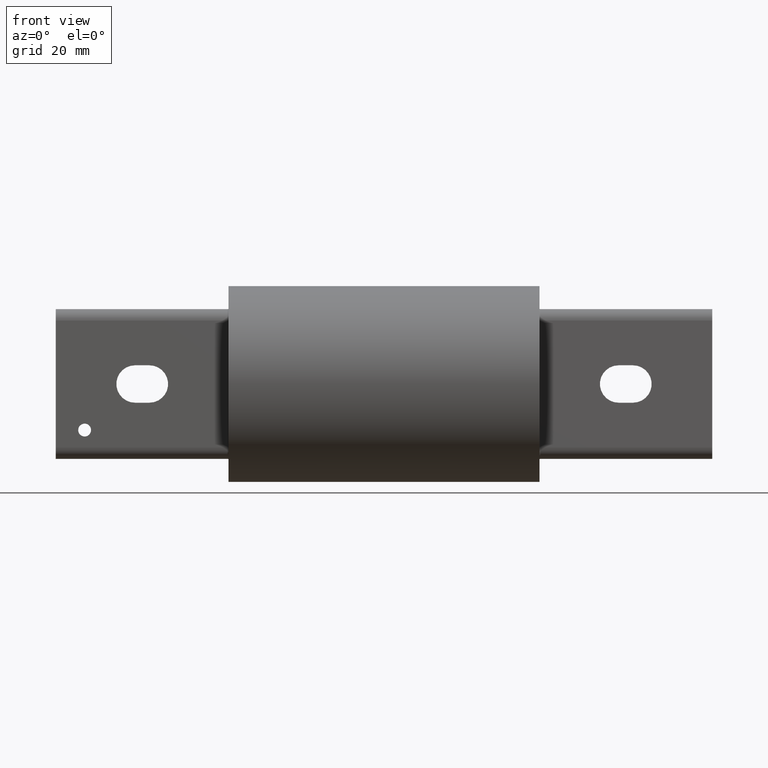
[diagram: clean part render]
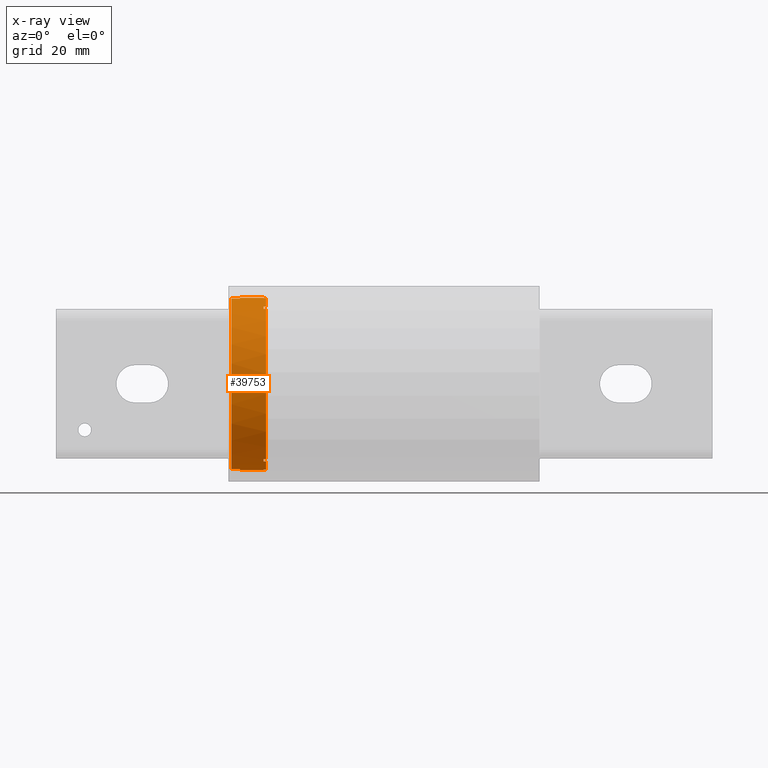
[diagram: x-ray — body ghosted, one internal face saturated and labeled with its STEP entity id]
A machine part, front view, then the same camera in x-ray: the body is ghosted and one INTERNAL B-rep face — a face not visible from any outside direction — is saturated and labeled: STEP entity #39753.
In plain terms, the highlighted cylindrical surface (bore or boss wall) has radius 23.7744 mm, axis along (1, 0, 0).
Its self-contained STEP definition (entity closure, byte-faithful):
#3 = EDGE_CURVE ( 'NONE', #36871, #22538, #7572, .T. ) ;
#72 = DIRECTION ( 'NONE',  ( -1.000000000000000000, -0.0000000000000000000, -0.0000000000000000000 ) ) ;
#429 = CIRCLE ( 'NONE', #34211, 0.9360000000000000500 ) ;
#628 = CARTESIAN_POINT ( 'NONE',  ( -1.307499999999999900, -1.488310777201891700E-016, 1.230886798966960700E-032 ) ) ;
#945 = DIRECTION ( 'NONE',  ( -1.000000000000000000, -0.0000000000000000000, -0.0000000000000000000 ) ) ;
#952 = VERTEX_POINT ( 'NONE', #5720 ) ;
#1062 = EDGE_CURVE ( 'NONE', #31111, #23963, #40950, .T. ) ;
#1123 = AXIS2_PLACEMENT_3D ( 'NONE', #41723, #21689, #1634 ) ;
#1203 = CARTESIAN_POINT ( 'NONE',  ( -1.307499999999999900, -0.08600000000000016000, -0.9320407716403826800 ) ) ;
#1634 = DIRECTION ( 'NONE',  ( 0.0000000000000000000, 5.329070518200751400E-015, 1.000000000000000000 ) ) ;
#1729 = CARTESIAN_POINT ( 'NONE',  ( -1.307499999999999900, -1.488310777201891700E-016, 1.230886798966960700E-032 ) ) ;
#1834 = DIRECTION ( 'NONE',  ( 0.0000000000000000000, 0.0000000000000000000, -1.000000000000000000 ) ) ;
#1902 = EDGE_CURVE ( 'NONE', #40966, #5715, #42497, .T. ) ;
#2158 = CIRCLE ( 'NONE', #13320, 0.9360000000000000500 ) ;
#2448 = ORIENTED_EDGE ( 'NONE', *, *, #41980, .T. ) ;
#2517 = EDGE_CURVE ( 'NONE', #21811, #19592, #11062, .T. ) ;
#2587 = DIRECTION ( 'NONE',  ( 1.000000000000000000, 0.0000000000000000000, 0.0000000000000000000 ) ) ;
#2724 = DIRECTION ( 'NONE',  ( 0.0000000000000000000, 1.687538997430237900E-014, -1.000000000000000000 ) ) ;
#2902 = VECTOR ( 'NONE', #19708, 39.37007874015748100 ) ;
#2952 = DIRECTION ( 'NONE',  ( -1.000000000000000000, 0.0000000000000000000, 0.0000000000000000000 ) ) ;
#3007 = EDGE_CURVE ( 'NONE', #8845, #15451, #429, .T. ) ;
#3032 = CARTESIAN_POINT ( 'NONE',  ( -1.279499999999998700, -1.488310777201891700E-016, 1.230886798966960700E-032 ) ) ;
#3161 = VECTOR ( 'NONE', #42672, 39.37007874015748100 ) ;
#3272 = CIRCLE ( 'NONE', #31532, 0.9360000000000000500 ) ;
#3439 = VECTOR ( 'NONE', #28714, 39.37007874015748100 ) ;
#3490 = VERTEX_POINT ( 'NONE', #1203 ) ;
#3576 = AXIS2_PLACEMENT_3D ( 'NONE', #38819, #28717, #15113 ) ;
#3682 = CARTESIAN_POINT ( 'NONE',  ( -1.279499999999998700, -1.488310777201891700E-016, 1.230886798966960700E-032 ) ) ;
#3864 = CARTESIAN_POINT ( 'NONE',  ( -1.279499999999998700, -1.488310777201891700E-016, 1.230886798966960700E-032 ) ) ;
#3963 = LINE ( 'NONE', #26312, #2902 ) ;
#4011 = DIRECTION ( 'NONE',  ( 0.0000000000000000000, 0.0000000000000000000, -1.000000000000000000 ) ) ;
#4061 = VERTEX_POINT ( 'NONE', #26986 ) ;
#4064 = DIRECTION ( 'NONE',  ( 1.000000000000000000, -0.0000000000000000000, -0.0000000000000000000 ) ) ;
#4115 = DIRECTION ( 'NONE',  ( -1.000000000000000000, -0.0000000000000000000, -0.0000000000000000000 ) ) ;
#4265 = VECTOR ( 'NONE', #32842, 39.37007874015748100 ) ;
#4342 = DIRECTION ( 'NONE',  ( -1.000000000000000000, -0.0000000000000000000, -0.0000000000000000000 ) ) ;
#4403 = ORIENTED_EDGE ( 'NONE', *, *, #42863, .F. ) ;
#4425 = EDGE_CURVE ( 'NONE', #36871, #18808, #42555, .T. ) ;
#4557 = ORIENTED_EDGE ( 'NONE', *, *, #22201, .F. ) ;
#4583 = CARTESIAN_POINT ( 'NONE',  ( -1.657499999999999100, -0.1280000000000001700, 0.9272065573538617000 ) ) ;
#4693 = EDGE_CURVE ( 'NONE', #32577, #17165, #21250, .T. ) ;
#5064 = AXIS2_PLACEMENT_3D ( 'NONE', #27722, #7677, #31100 ) ;
#5108 = DIRECTION ( 'NONE',  ( 0.0000000000000000000, 0.0000000000000000000, -1.000000000000000000 ) ) ;
#5205 = ORIENTED_EDGE ( 'NONE', *, *, #4693, .T. ) ;
#5362 = EDGE_CURVE ( 'NONE', #27086, #40966, #21713, .T. ) ;
#5500 = EDGE_CURVE ( 'NONE', #29508, #25400, #7596, .T. ) ;
#5590 = ORIENTED_EDGE ( 'NONE', *, *, #36359, .F. ) ;
#5604 = EDGE_CURVE ( 'NONE', #32215, #21811, #11770, .T. ) ;
#5715 = VERTEX_POINT ( 'NONE', #39133 ) ;
#5720 = CARTESIAN_POINT ( 'NONE',  ( -1.307499999999999900, -0.4610000000000001300, -0.8146011293878742100 ) ) ;
#5753 = ORIENTED_EDGE ( 'NONE', *, *, #1902, .T. ) ;
#5813 = CARTESIAN_POINT ( 'NONE',  ( -1.687500000000000000, -1.488310777201891700E-016, 1.230886798966960700E-032 ) ) ;
#6130 = CARTESIAN_POINT ( 'NONE',  ( -1.687500000000000000, -0.1280000000000001700, 0.9272065573538615900 ) ) ;
#6234 = CARTESIAN_POINT ( 'NONE',  ( -1.279499999999998700, 0.4609999999999998500, 0.8146011293878742100 ) ) ;
#6335 = CARTESIAN_POINT ( 'NONE',  ( -1.307499999999999900, 0.4609999999999998500, -0.8146011293878742100 ) ) ;
#6438 = DIRECTION ( 'NONE',  ( 0.0000000000000000000, 8.881784197001252300E-016, -1.000000000000000000 ) ) ;
#6503 = ORIENTED_EDGE ( 'NONE', *, *, #37952, .T. ) ;
#6658 = DIRECTION ( 'NONE',  ( -1.000000000000000000, -0.0000000000000000000, -0.0000000000000000000 ) ) ;
#6867 = DIRECTION ( 'NONE',  ( -1.000000000000000000, 0.0000000000000000000, 0.0000000000000000000 ) ) ;
#6918 = VERTEX_POINT ( 'NONE', #14919 ) ;
#7089 = LINE ( 'NONE', #25961, #24856 ) ;
#7186 = CARTESIAN_POINT ( 'NONE',  ( -1.687500000000000000, -0.08600000000000016000, 0.9320407716403825700 ) ) ;
#7208 = EDGE_LOOP ( 'NONE', ( #13712 ) ) ;
#7274 = DIRECTION ( 'NONE',  ( 0.0000000000000000000, -3.552713678800500900E-015, -1.000000000000000000 ) ) ;
#7413 = AXIS2_PLACEMENT_3D ( 'NONE', #3032, #26462, #6438 ) ;
#7538 = EDGE_CURVE ( 'NONE', #20592, #19362, #24415, .T. ) ;
#7572 = CIRCLE ( 'NONE', #39906, 0.9360000000000000500 ) ;
#7596 = LINE ( 'NONE', #17495, #42112 ) ;
#7677 = DIRECTION ( 'NONE',  ( -1.000000000000000000, 0.0000000000000000000, 0.0000000000000000000 ) ) ;
#7814 = EDGE_CURVE ( 'NONE', #14826, #14826, #9866, .T. ) ;
#7951 = DIRECTION ( 'NONE',  ( 1.000000000000000000, -0.0000000000000000000, -0.0000000000000000000 ) ) ;
#8071 = CARTESIAN_POINT ( 'NONE',  ( -1.687500000000000000, 0.4139999999999998700, -0.8394641147779933200 ) ) ;
#8174 = CIRCLE ( 'NONE', #5064, 0.9360000000000000500 ) ;
#8211 = FACE_OUTER_BOUND ( 'NONE', #35375, .T. ) ;
#8547 = CARTESIAN_POINT ( 'NONE',  ( -3.558464724413584500, 0.03899999999999985400, -0.9351871470459803800 ) ) ;
#8558 = CIRCLE ( 'NONE', #23314, 0.9360000000000000500 ) ;
#8570 = CARTESIAN_POINT ( 'NONE',  ( -1.307499999999999900, -1.488310777201891700E-016, 1.230886798966960700E-032 ) ) ;
#8704 = CARTESIAN_POINT ( 'NONE',  ( -1.279499999999998500, 0.08599999999999985400, 0.9320407716403826800 ) ) ;
#8845 = VERTEX_POINT ( 'NONE', #4583 ) ;
#9426 = CARTESIAN_POINT ( 'NONE',  ( -1.279499999999998700, 0.08599999999999985400, -0.9320407716403826800 ) ) ;
#9466 = CIRCLE ( 'NONE', #26598, 0.9360000000000000500 ) ;
#9524 = ORIENTED_EDGE ( 'NONE', *, *, #39891, .T. ) ;
#9866 = B_SPLINE_CURVE_WITH_KNOTS ( 'NONE', 3,
 ( #39568, #39622, #39563, #39528, #39480, #39422, #39393, #39284, #38849, #38844, #38815, #38799, #38561, #38480, #38433, #38425, #38283, #38276, #38138, #38090, #37846, #37792, #37748, #37694, #37548, #37491, #37453, #37392, #37325, #37239, #37193, #37149, #37103, #37094, #37048, #37021, #36896, #36758, #36481, #36391, #36249, #36193 ),
 .UNSPECIFIED., .T., .F.,
 ( 4, 2, 2, 2, 2, 2, 2, 2, 2, 2, 2, 2, 2, 2, 2, 2, 2, 2, 2, 2, 4 ),
 ( 0.0000000000000000000, 0.0005038046531170146300, 0.0007557069796755211300, 0.001007609306234027500, 0.001511413959351040300, 0.002015218612468053300, 0.002267120939026554900, 0.002519023265585057000, 0.003022827918702061100, 0.003526632571819065200, 0.003778534898377557700, 0.004030437224936051100, 0.004534241878053016200, 0.005038046531169982100, 0.005541851184286947200, 0.006045655837403913200, 0.006549460490520877400, 0.006801362817079361700, 0.007053265143637844200, 0.007557069796754806700, 0.008060874449871769200 ),
 .UNSPECIFIED. ) ;
#10021 = VECTOR ( 'NONE', #25496, 39.37007874015748100 ) ;
#10031 = LINE ( 'NONE', #38727, #27817 ) ;
#10372 = CARTESIAN_POINT ( 'NONE',  ( -1.307499999999999900, -0.4610000000000001300, 0.8146011293878742100 ) ) ;
#10428 = EDGE_CURVE ( 'NONE', #952, #33117, #10469, .T. ) ;
#10469 = LINE ( 'NONE', #19705, #36117 ) ;
#10857 = CARTESIAN_POINT ( 'NONE',  ( -1.307499999999999900, 0.08599999999999985400, -0.9320407716403826800 ) ) ;
#11018 = CIRCLE ( 'NONE', #12948, 0.9360000000000000500 ) ;
#11036 = VECTOR ( 'NONE', #4064, 39.37007874015748100 ) ;
#11062 = LINE ( 'NONE', #8547, #10021 ) ;
#11084 = ORIENTED_EDGE ( 'NONE', *, *, #25969, .F. ) ;
#11313 = CARTESIAN_POINT ( 'NONE',  ( -1.279499999999998700, -1.488310777201891700E-016, 1.230886798966960700E-032 ) ) ;
#11416 = DIRECTION ( 'NONE',  ( 1.000000000000000000, -0.0000000000000000000, -0.0000000000000000000 ) ) ;
#11504 = ORIENTED_EDGE ( 'NONE', *, *, #10428, .T. ) ;
#11770 = CIRCLE ( 'NONE', #27908, 0.9360000000000000500 ) ;
#11878 = ORIENTED_EDGE ( 'NONE', *, *, #29658, .F. ) ;
#11944 = VERTEX_POINT ( 'NONE', #35445 ) ;
#12439 = CARTESIAN_POINT ( 'NONE',  ( -1.279499999999998700, -0.4610000000000001300, 0.8146011293878741000 ) ) ;
#12541 = ORIENTED_EDGE ( 'NONE', *, *, #12584, .T. ) ;
#12571 = VECTOR ( 'NONE', #13921, 39.37007874015748100 ) ;
#12584 = EDGE_CURVE ( 'NONE', #25400, #37494, #11018, .T. ) ;
#12746 = VERTEX_POINT ( 'NONE', #35390 ) ;
#12856 = DIRECTION ( 'NONE',  ( -1.000000000000000000, 0.0000000000000000000, 0.0000000000000000000 ) ) ;
#12948 = AXIS2_PLACEMENT_3D ( 'NONE', #3682, #2952, #2724 ) ;
#12965 = CARTESIAN_POINT ( 'NONE',  ( -1.279499999999998700, -1.488310777201891700E-016, 1.230886798966960700E-032 ) ) ;
#13037 = VECTOR ( 'NONE', #27865, 39.37007874015748100 ) ;
#13111 = DIRECTION ( 'NONE',  ( 1.000000000000000000, -0.0000000000000000000, -0.0000000000000000000 ) ) ;
#13320 = AXIS2_PLACEMENT_3D ( 'NONE', #33123, #13111, #36469 ) ;
#13546 = CIRCLE ( 'NONE', #29576, 0.9360000000000000500 ) ;
#13574 = AXIS2_PLACEMENT_3D ( 'NONE', #1729, #25164, #5108 ) ;
#13712 = ORIENTED_EDGE ( 'NONE', *, *, #7814, .F. ) ;
#13844 = DIRECTION ( 'NONE',  ( 0.0000000000000000000, 2.131628207280300600E-014, -1.000000000000000000 ) ) ;
#13921 = DIRECTION ( 'NONE',  ( -1.000000000000000000, -0.0000000000000000000, -0.0000000000000000000 ) ) ;
#14518 = EDGE_CURVE ( 'NONE', #5715, #34801, #7089, .T. ) ;
#14682 = DIRECTION ( 'NONE',  ( 0.0000000000000000000, 0.0000000000000000000, -1.000000000000000000 ) ) ;
#14826 = VERTEX_POINT ( 'NONE', #22187 ) ;
#14919 = CARTESIAN_POINT ( 'NONE',  ( -1.307499999999999900, 0.03899999999999985400, 0.9351871470459806000 ) ) ;
#15053 = EDGE_CURVE ( 'NONE', #34801, #32577, #8558, .T. ) ;
#15113 = DIRECTION ( 'NONE',  ( 0.0000000000000000000, -7.460698725481050700E-014, -1.000000000000000000 ) ) ;
#15451 = VERTEX_POINT ( 'NONE', #19205 ) ;
#15653 = ORIENTED_EDGE ( 'NONE', *, *, #20571, .T. ) ;
#15826 = ORIENTED_EDGE ( 'NONE', *, *, #41411, .T. ) ;
#16071 = VERTEX_POINT ( 'NONE', #18869 ) ;
#16088 = LINE ( 'NONE', #40527, #32831 ) ;
#16294 = EDGE_CURVE ( 'NONE', #23769, #32059, #38193, .T. ) ;
#16306 = DIRECTION ( 'NONE',  ( 0.0000000000000000000, -2.664535259100375700E-015, -1.000000000000000000 ) ) ;
#16450 = VERTEX_POINT ( 'NONE', #31467 ) ;
#16601 = DIRECTION ( 'NONE',  ( 1.000000000000000000, 0.0000000000000000000, 0.0000000000000000000 ) ) ;
#16688 = CARTESIAN_POINT ( 'NONE',  ( -1.279499999999998700, -0.08600000000000016000, 0.9320407716403825700 ) ) ;
#17165 = VERTEX_POINT ( 'NONE', #38705 ) ;
#17298 = VERTEX_POINT ( 'NONE', #9426 ) ;
#17480 = CARTESIAN_POINT ( 'NONE',  ( -1.657499999999999500, 0.1279999999999998600, 0.9272065573538617000 ) ) ;
#17495 = CARTESIAN_POINT ( 'NONE',  ( -3.558464724413584500, -0.03900000000000014600, 0.9351871470459806000 ) ) ;
#17571 = ORIENTED_EDGE ( 'NONE', *, *, #24451, .T. ) ;
#17675 = EDGE_LOOP ( 'NONE', ( #2448, #40640, #24591, #11504, #9524, #31990, #5753, #36210, #22002, #5205, #30791, #29267, #12541, #11878, #41715, #37649, #40648, #4557, #40785, #24094, #15826, #22078, #38202, #18380, #38492, #18184, #28114, #41142, #39571, #32296, #17571, #6503 ) ) ;
#18184 = ORIENTED_EDGE ( 'NONE', *, *, #37456, .F. ) ;
#18380 = ORIENTED_EDGE ( 'NONE', *, *, #20923, .F. ) ;
#18509 = DIRECTION ( 'NONE',  ( -1.000000000000000000, -0.0000000000000000000, -0.0000000000000000000 ) ) ;
#18692 = CARTESIAN_POINT ( 'NONE',  ( -1.307499999999999900, 0.4609999999999998500, 0.8146011293878742100 ) ) ;
#18808 = VERTEX_POINT ( 'NONE', #17480 ) ;
#18869 = CARTESIAN_POINT ( 'NONE',  ( -1.279499999999998700, -0.08600000000000016000, -0.9320407716403825700 ) ) ;
#19205 = CARTESIAN_POINT ( 'NONE',  ( -1.657499999999999500, -0.1280000000000001700, -0.9272065573538617000 ) ) ;
#19362 = VERTEX_POINT ( 'NONE', #37933 ) ;
#19459 = CARTESIAN_POINT ( 'NONE',  ( -1.307499999999999900, -0.4140000000000001500, -0.8394641147779934300 ) ) ;
#19592 = VERTEX_POINT ( 'NONE', #36133 ) ;
#19705 = CARTESIAN_POINT ( 'NONE',  ( -1.687500000000000000, -0.4610000000000001300, -0.8146011293878741000 ) ) ;
#19708 = DIRECTION ( 'NONE',  ( 1.000000000000000000, 0.0000000000000000000, 0.0000000000000000000 ) ) ;
#19738 = DIRECTION ( 'NONE',  ( -1.000000000000000000, -0.0000000000000000000, -0.0000000000000000000 ) ) ;
#19890 = CARTESIAN_POINT ( 'NONE',  ( -1.307499999999999900, 0.08599999999999985400, 0.9320407716403826800 ) ) ;
#20089 = EDGE_CURVE ( 'NONE', #6918, #32059, #21113, .T. ) ;
#20130 = CARTESIAN_POINT ( 'NONE',  ( -1.307499999999999900, -1.488310777201891700E-016, 1.230886798966960700E-032 ) ) ;
#20206 = ORIENTED_EDGE ( 'NONE', *, *, #23732, .T. ) ;
#20240 = AXIS2_PLACEMENT_3D ( 'NONE', #628, #24051, #4011 ) ;
#20256 = DIRECTION ( 'NONE',  ( 1.000000000000000000, 0.0000000000000000000, 0.0000000000000000000 ) ) ;
#20264 = CARTESIAN_POINT ( 'NONE',  ( -1.279499999999998700, -0.4610000000000001300, -0.8146011293878741000 ) ) ;
#20430 = VERTEX_POINT ( 'NONE', #25502 ) ;
#20571 = EDGE_CURVE ( 'NONE', #37469, #18808, #2158, .T. ) ;
#20592 = VERTEX_POINT ( 'NONE', #6335 ) ;
#20757 = CARTESIAN_POINT ( 'NONE',  ( -1.687500000000000000, 0.08599999999999985400, 0.9320407716403825700 ) ) ;
#20923 = EDGE_CURVE ( 'NONE', #16450, #19362, #27275, .T. ) ;
#21008 = CARTESIAN_POINT ( 'NONE',  ( -1.307499999999999900, -1.488310777201891700E-016, 1.230886798966960700E-032 ) ) ;
#21023 = LINE ( 'NONE', #26068, #4265 ) ;
#21113 = CIRCLE ( 'NONE', #20240, 0.9360000000000000500 ) ;
#21250 = LINE ( 'NONE', #7186, #3439 ) ;
#21266 = VECTOR ( 'NONE', #11416, 39.37007874015748100 ) ;
#21689 = DIRECTION ( 'NONE',  ( 1.000000000000000000, -0.0000000000000000000, -0.0000000000000000000 ) ) ;
#21713 = LINE ( 'NONE', #28174, #29590 ) ;
#21802 = AXIS2_PLACEMENT_3D ( 'NONE', #41920, #21889, #1834 ) ;
#21811 = VERTEX_POINT ( 'NONE', #27291 ) ;
#21889 = DIRECTION ( 'NONE',  ( -1.000000000000000000, -0.0000000000000000000, -0.0000000000000000000 ) ) ;
#22002 = ORIENTED_EDGE ( 'NONE', *, *, #15053, .T. ) ;
#22078 = ORIENTED_EDGE ( 'NONE', *, *, #24766, .F. ) ;
#22187 = CARTESIAN_POINT ( 'NONE',  ( -1.444499999999999900, 0.8440580171670940500, 0.4045516823051822400 ) ) ;
#22201 = EDGE_CURVE ( 'NONE', #24193, #36420, #35880, .T. ) ;
#22236 = CARTESIAN_POINT ( 'NONE',  ( -1.562500000000000000, -0.1280000000000001700, 0.9272065573538617000 ) ) ;
#22538 = VERTEX_POINT ( 'NONE', #22236 ) ;
#22740 = AXIS2_PLACEMENT_3D ( 'NONE', #12965, #36323, #16306 ) ;
#22925 = CARTESIAN_POINT ( 'NONE',  ( -1.279499999999998300, 0.4139999999999998700, 0.8394641147779962100 ) ) ;
#23314 = AXIS2_PLACEMENT_3D ( 'NONE', #3864, #27318, #7274 ) ;
#23320 = ORIENTED_EDGE ( 'NONE', *, *, #4425, .F. ) ;
#23428 = DIRECTION ( 'NONE',  ( 1.000000000000000000, -0.0000000000000000000, -0.0000000000000000000 ) ) ;
#23485 = DIRECTION ( 'NONE',  ( 0.0000000000000000000, 0.0000000000000000000, -1.000000000000000000 ) ) ;
#23732 = EDGE_CURVE ( 'NONE', #12746, #20430, #27201, .T. ) ;
#23769 = VERTEX_POINT ( 'NONE', #8704 ) ;
#23829 = DIRECTION ( 'NONE',  ( 1.000000000000000000, 0.0000000000000000000, 0.0000000000000000000 ) ) ;
#23963 = VERTEX_POINT ( 'NONE', #19459 ) ;
#23977 = EDGE_CURVE ( 'NONE', #16450, #17298, #38623, .T. ) ;
#24051 = DIRECTION ( 'NONE',  ( -1.000000000000000000, -0.0000000000000000000, -0.0000000000000000000 ) ) ;
#24094 = ORIENTED_EDGE ( 'NONE', *, *, #38763, .F. ) ;
#24100 = CARTESIAN_POINT ( 'NONE',  ( -3.558464724413584500, 0.03899999999999985400, 0.9351871470459806000 ) ) ;
#24193 = VERTEX_POINT ( 'NONE', #39969 ) ;
#24233 = CIRCLE ( 'NONE', #21802, 0.9360000000000000500 ) ;
#24376 = DIRECTION ( 'NONE',  ( 0.0000000000000000000, 0.0000000000000000000, -1.000000000000000000 ) ) ;
#24415 = CIRCLE ( 'NONE', #3576, 0.9360000000000000500 ) ;
#24451 = EDGE_CURVE ( 'NONE', #11944, #3490, #27082, .T. ) ;
#24591 = ORIENTED_EDGE ( 'NONE', *, *, #43418, .T. ) ;
#24757 = VECTOR ( 'NONE', #6658, 39.37007874015748100 ) ;
#24766 = EDGE_CURVE ( 'NONE', #20592, #4061, #3963, .T. ) ;
#24856 = VECTOR ( 'NONE', #42339, 39.37007874015748100 ) ;
#25164 = DIRECTION ( 'NONE',  ( -1.000000000000000000, -0.0000000000000000000, -0.0000000000000000000 ) ) ;
#25300 = CARTESIAN_POINT ( 'NONE',  ( -1.307499999999999900, -1.488310777201891700E-016, 1.230886798966960700E-032 ) ) ;
#25400 = VERTEX_POINT ( 'NONE', #39314 ) ;
#25496 = DIRECTION ( 'NONE',  ( 1.000000000000000000, -0.0000000000000000000, -0.0000000000000000000 ) ) ;
#25502 = CARTESIAN_POINT ( 'NONE',  ( -1.562500000000000000, 0.1279999999999998600, -0.9272065573538617000 ) ) ;
#25961 = CARTESIAN_POINT ( 'NONE',  ( -1.687500000000000000, -0.4140000000000001500, 0.8394641147779933200 ) ) ;
#25969 = EDGE_CURVE ( 'NONE', #12746, #15451, #21023, .T. ) ;
#26068 = CARTESIAN_POINT ( 'NONE',  ( -1.687500000000000000, -0.1280000000000001700, -0.9272065573538615900 ) ) ;
#26171 = DIRECTION ( 'NONE',  ( -1.000000000000000000, -0.0000000000000000000, -0.0000000000000000000 ) ) ;
#26312 = CARTESIAN_POINT ( 'NONE',  ( -1.687500000000000000, 0.4609999999999998500, -0.8146011293878741000 ) ) ;
#26462 = DIRECTION ( 'NONE',  ( -1.000000000000000000, 0.0000000000000000000, 0.0000000000000000000 ) ) ;
#26584 = AXIS2_PLACEMENT_3D ( 'NONE', #11313, #34725, #14682 ) ;
#26598 = AXIS2_PLACEMENT_3D ( 'NONE', #20130, #72, #23485 ) ;
#26907 = CARTESIAN_POINT ( 'NONE',  ( -1.279499999999998700, -1.488310777201891700E-016, 1.230886798966960700E-032 ) ) ;
#26973 = VECTOR ( 'NONE', #16601, 39.37007874015748100 ) ;
#26979 = VECTOR ( 'NONE', #38231, 39.37007874015748100 ) ;
#26986 = CARTESIAN_POINT ( 'NONE',  ( -1.279499999999998700, 0.4609999999999998500, -0.8146011293878742100 ) ) ;
#27082 = CIRCLE ( 'NONE', #13574, 0.9360000000000000500 ) ;
#27086 = VERTEX_POINT ( 'NONE', #12439 ) ;
#27201 = CIRCLE ( 'NONE', #1123, 0.9360000000000000500 ) ;
#27275 = LINE ( 'NONE', #8071, #36169 ) ;
#27291 = CARTESIAN_POINT ( 'NONE',  ( -1.307499999999999900, 0.03899999999999985400, -0.9351871470459806000 ) ) ;
#27318 = DIRECTION ( 'NONE',  ( -1.000000000000000000, 0.0000000000000000000, 0.0000000000000000000 ) ) ;
#27722 = CARTESIAN_POINT ( 'NONE',  ( -1.279499999999998700, -1.488310777201891700E-016, 1.230886798966960700E-032 ) ) ;
#27817 = VECTOR ( 'NONE', #18509, 39.37007874015748100 ) ;
#27865 = DIRECTION ( 'NONE',  ( 1.000000000000000000, 0.0000000000000000000, 0.0000000000000000000 ) ) ;
#27881 = CIRCLE ( 'NONE', #7413, 0.9360000000000000500 ) ;
#27908 = AXIS2_PLACEMENT_3D ( 'NONE', #8570, #4115, #42610 ) ;
#27939 = CARTESIAN_POINT ( 'NONE',  ( -1.687500000000000000, -0.4140000000000001500, -0.8394641147779933200 ) ) ;
#28114 = ORIENTED_EDGE ( 'NONE', *, *, #5604, .T. ) ;
#28118 = DIRECTION ( 'NONE',  ( -1.000000000000000000, -0.0000000000000000000, -0.0000000000000000000 ) ) ;
#28136 = EDGE_CURVE ( 'NONE', #19592, #34191, #30214, .T. ) ;
#28140 = CARTESIAN_POINT ( 'NONE',  ( -1.657499999999999100, 0.1279999999999998600, -0.9272065573538617000 ) ) ;
#28174 = CARTESIAN_POINT ( 'NONE',  ( -1.687500000000000000, -0.4610000000000001300, 0.8146011293878741000 ) ) ;
#28446 = DIRECTION ( 'NONE',  ( 0.0000000000000000000, 0.0000000000000000000, 1.000000000000000000 ) ) ;
#28714 = DIRECTION ( 'NONE',  ( -1.000000000000000000, -0.0000000000000000000, -0.0000000000000000000 ) ) ;
#28717 = DIRECTION ( 'NONE',  ( -1.000000000000000000, -0.0000000000000000000, -0.0000000000000000000 ) ) ;
#29267 = ORIENTED_EDGE ( 'NONE', *, *, #5500, .T. ) ;
#29508 = VERTEX_POINT ( 'NONE', #36560 ) ;
#29576 = AXIS2_PLACEMENT_3D ( 'NONE', #32893, #12856, #36227 ) ;
#29590 = VECTOR ( 'NONE', #4342, 39.37007874015748100 ) ;
#29658 = EDGE_CURVE ( 'NONE', #6918, #37494, #36661, .T. ) ;
#29906 = CARTESIAN_POINT ( 'NONE',  ( -1.687500000000000000, 0.4139999999999998700, 0.8394641147779933200 ) ) ;
#30214 = CIRCLE ( 'NONE', #26584, 0.9360000000000000500 ) ;
#30298 = DIRECTION ( 'NONE',  ( 0.0000000000000000000, 0.0000000000000000000, -1.000000000000000000 ) ) ;
#30791 = ORIENTED_EDGE ( 'NONE', *, *, #41125, .T. ) ;
#30830 = EDGE_CURVE ( 'NONE', #11944, #34191, #33355, .T. ) ;
#31100 = DIRECTION ( 'NONE',  ( 0.0000000000000000000, 0.0000000000000000000, -1.000000000000000000 ) ) ;
#31111 = VERTEX_POINT ( 'NONE', #32020 ) ;
#31126 = CIRCLE ( 'NONE', #41402, 0.9360000000000000500 ) ;
#31272 = VERTEX_POINT ( 'NONE', #6234 ) ;
#31467 = CARTESIAN_POINT ( 'NONE',  ( -1.279499999999998500, 0.4139999999999998700, -0.8394641147779934300 ) ) ;
#31468 = AXIS2_PLACEMENT_3D ( 'NONE', #5813, #2587, #39485 ) ;
#31532 = AXIS2_PLACEMENT_3D ( 'NONE', #21008, #945, #24376 ) ;
#31721 = CARTESIAN_POINT ( 'NONE',  ( -1.562500000000000000, 0.1279999999999998600, 0.9272065573538617000 ) ) ;
#31990 = ORIENTED_EDGE ( 'NONE', *, *, #5362, .T. ) ;
#32020 = CARTESIAN_POINT ( 'NONE',  ( -1.279499999999998700, -0.4140000000000001500, -0.8394641147779933200 ) ) ;
#32059 = VERTEX_POINT ( 'NONE', #19890 ) ;
#32089 = VECTOR ( 'NONE', #19738, 39.37007874015748100 ) ;
#32215 = VERTEX_POINT ( 'NONE', #10857 ) ;
#32296 = ORIENTED_EDGE ( 'NONE', *, *, #30830, .F. ) ;
#32577 = VERTEX_POINT ( 'NONE', #16688 ) ;
#32831 = VECTOR ( 'NONE', #23829, 39.37007874015748100 ) ;
#32842 = DIRECTION ( 'NONE',  ( -1.000000000000000000, -0.0000000000000000000, -0.0000000000000000000 ) ) ;
#32893 = CARTESIAN_POINT ( 'NONE',  ( -1.279499999999998700, -1.488310777201891700E-016, 1.230886798966960700E-032 ) ) ;
#33117 = VERTEX_POINT ( 'NONE', #20264 ) ;
#33123 = CARTESIAN_POINT ( 'NONE',  ( -1.657499999999999100, -1.488310777201891700E-016, 1.230886798966960700E-032 ) ) ;
#33355 = LINE ( 'NONE', #34816, #21266 ) ;
#33876 = FACE_BOUND ( 'NONE', #7208, .T. ) ;
#34147 = AXIS2_PLACEMENT_3D ( 'NONE', #25300, #26171, #13844 ) ;
#34191 = VERTEX_POINT ( 'NONE', #40377 ) ;
#34211 = AXIS2_PLACEMENT_3D ( 'NONE', #37978, #37963, #38496 ) ;
#34602 = CARTESIAN_POINT ( 'NONE',  ( -1.687500000000000000, 0.1279999999999998600, 0.9272065573538615900 ) ) ;
#34725 = DIRECTION ( 'NONE',  ( -1.000000000000000000, 0.0000000000000000000, 0.0000000000000000000 ) ) ;
#34801 = VERTEX_POINT ( 'NONE', #36964 ) ;
#34816 = CARTESIAN_POINT ( 'NONE',  ( -3.558464724413584500, -0.03900000000000014600, -0.9351871470459803800 ) ) ;
#35375 = EDGE_LOOP ( 'NONE', ( #11084, #20206, #4403, #15653, #23320, #39156, #5590, #36024 ) ) ;
#35390 = CARTESIAN_POINT ( 'NONE',  ( -1.562500000000000000, -0.1280000000000001700, -0.9272065573538617000 ) ) ;
#35445 = CARTESIAN_POINT ( 'NONE',  ( -1.307499999999999900, -0.03900000000000014600, -0.9351871470459806000 ) ) ;
#35880 = LINE ( 'NONE', #29906, #26973 ) ;
#35883 = LINE ( 'NONE', #41387, #26979 ) ;
#36024 = ORIENTED_EDGE ( 'NONE', *, *, #3007, .T. ) ;
#36117 = VECTOR ( 'NONE', #20256, 39.37007874015748100 ) ;
#36133 = CARTESIAN_POINT ( 'NONE',  ( -1.279499999999998700, 0.03899999999999985400, -0.9351871470459803800 ) ) ;
#36169 = VECTOR ( 'NONE', #28118, 39.37007874015748100 ) ;
#36193 = CARTESIAN_POINT ( 'NONE',  ( -1.444500000000000300, 0.8440580171670941700, 0.4045516823051823500 ) ) ;
#36210 = ORIENTED_EDGE ( 'NONE', *, *, #14518, .T. ) ;
#36227 = DIRECTION ( 'NONE',  ( 0.0000000000000000000, 0.0000000000000000000, -1.000000000000000000 ) ) ;
#36249 = CARTESIAN_POINT ( 'NONE',  ( -1.451206898777022100, 0.8440580171670945000, 0.4045516823051825700 ) ) ;
#36323 = DIRECTION ( 'NONE',  ( -1.000000000000000000, 0.0000000000000000000, 0.0000000000000000000 ) ) ;
#36359 = EDGE_CURVE ( 'NONE', #8845, #22538, #37752, .T. ) ;
#36391 = CARTESIAN_POINT ( 'NONE',  ( -1.457869738742850800, 0.8446439808444999900, 0.4033348443216715500 ) ) ;
#36420 = VERTEX_POINT ( 'NONE', #22925 ) ;
#36469 = DIRECTION ( 'NONE',  ( 0.0000000000000000000, 0.0000000000000000000, -1.000000000000000000 ) ) ;
#36476 = EDGE_CURVE ( 'NONE', #24193, #39610, #9466, .T. ) ;
#36481 = CARTESIAN_POINT ( 'NONE',  ( -1.470078862936384100, 0.8468204672433205000, 0.3987449652078820500 ) ) ;
#36560 = CARTESIAN_POINT ( 'NONE',  ( -1.307499999999999900, -0.03899999999999566300, 0.9351871470459806000 ) ) ;
#36661 = LINE ( 'NONE', #24100, #11036 ) ;
#36758 = CARTESIAN_POINT ( 'NONE',  ( -1.475734190780352100, 0.8484347060466934700, 0.3953182947606107600 ) ) ;
#36871 = VERTEX_POINT ( 'NONE', #31721 ) ;
#36896 = CARTESIAN_POINT ( 'NONE',  ( -1.482754207713460800, 0.8513744637210175500, 0.3889254731603403200 ) ) ;
#36964 = CARTESIAN_POINT ( 'NONE',  ( -1.279499999999998700, -0.4140000000000001500, 0.8394641147779933200 ) ) ;
#37021 = CARTESIAN_POINT ( 'NONE',  ( -1.484895426666964500, 0.8524591046823493100, 0.3865450648295966100 ) ) ;
#37048 = CARTESIAN_POINT ( 'NONE',  ( -1.488570647906363400, 0.8547231027307231600, 0.3815128175544256200 ) ) ;
#37094 = CARTESIAN_POINT ( 'NONE',  ( -1.490127619879876100, 0.8559089687781908900, 0.3788473459417926500 ) ) ;
#37103 = CARTESIAN_POINT ( 'NONE',  ( -1.493944453069185200, 0.8596186901291263900, 0.3703911513913784000 ) ) ;
#37149 = CARTESIAN_POINT ( 'NONE',  ( -1.495256685615706800, 0.8622084478772483700, 0.3643314890343747300 ) ) ;
#37193 = CARTESIAN_POINT ( 'NONE',  ( -1.495243263410919400, 0.8673329621819584300, 0.3519579153898495500 ) ) ;
#37239 = CARTESIAN_POINT ( 'NONE',  ( -1.493914389744915000, 0.8697869404706704000, 0.3458386313100445000 ) ) ;
#37325 = CARTESIAN_POINT ( 'NONE',  ( -1.488813105503431500, 0.8742480781719845800, 0.3344009248377248200 ) ) ;
#37392 = CARTESIAN_POINT ( 'NONE',  ( -1.485034457039146500, 0.8762373751708686400, 0.3291290713055483600 ) ) ;
#37453 = CARTESIAN_POINT ( 'NONE',  ( -1.475667314839377300, 0.8794833702403469500, 0.3203543111860163700 ) ) ;
#37456 = EDGE_CURVE ( 'NONE', #32215, #17298, #38644, .T. ) ;
#37469 = VERTEX_POINT ( 'NONE', #28140 ) ;
#37491 = CARTESIAN_POINT ( 'NONE',  ( -1.470001720748617800, 0.8807627972514453500, 0.3167953476259996500 ) ) ;
#37494 = VERTEX_POINT ( 'NONE', #41403 ) ;
#37506 = CYLINDRICAL_SURFACE ( 'NONE', #31468, 0.9360000000000000500 ) ;
#37548 = CARTESIAN_POINT ( 'NONE',  ( -1.457783536945890500, 0.8824620306134687300, 0.3120307065421962200 ) ) ;
#37649 = ORIENTED_EDGE ( 'NONE', *, *, #16294, .F. ) ;
#37694 = CARTESIAN_POINT ( 'NONE',  ( -1.451106277987613400, 0.8829011722062575200, 0.3107756749207475400 ) ) ;
#37748 = CARTESIAN_POINT ( 'NONE',  ( -1.441169637472863800, 0.8828999906064749500, 0.3107790317709571700 ) ) ;
#37752 = LINE ( 'NONE', #6130, #3161 ) ;
#37792 = CARTESIAN_POINT ( 'NONE',  ( -1.437805814770406700, 0.8827893833340240100, 0.3110937609194789300 ) ) ;
#37846 = CARTESIAN_POINT ( 'NONE',  ( -1.431303044237521600, 0.8823559903750293200, 0.3123208761187657400 ) ) ;
#37933 = CARTESIAN_POINT ( 'NONE',  ( -1.307499999999999900, 0.4139999999999998700, -0.8394641147779934300 ) ) ;
#37952 = EDGE_CURVE ( 'NONE', #3490, #16071, #16088, .T. ) ;
#37963 = DIRECTION ( 'NONE',  ( 1.000000000000000000, -0.0000000000000000000, -0.0000000000000000000 ) ) ;
#37978 = CARTESIAN_POINT ( 'NONE',  ( -1.657499999999999100, -1.488310777201891700E-016, 1.230886798966960700E-032 ) ) ;
#38090 = CARTESIAN_POINT ( 'NONE',  ( -1.428139679213675400, 0.8820352310646777400, 0.3132275204710449100 ) ) ;
#38103 = CARTESIAN_POINT ( 'NONE',  ( -1.687500000000000000, 0.08599999999999985400, -0.9320407716403825700 ) ) ;
#38138 = CARTESIAN_POINT ( 'NONE',  ( -1.418916506140819100, 0.8807491989450232400, 0.3168333351096934700 ) ) ;
#38193 = LINE ( 'NONE', #20757, #12571 ) ;
#38202 = ORIENTED_EDGE ( 'NONE', *, *, #7538, .T. ) ;
#38231 = DIRECTION ( 'NONE',  ( 1.000000000000000000, 0.0000000000000000000, 0.0000000000000000000 ) ) ;
#38276 = CARTESIAN_POINT ( 'NONE',  ( -1.413331674151290000, 0.8794880319213169700, 0.3203424702700747900 ) ) ;
#38283 = CARTESIAN_POINT ( 'NONE',  ( -1.403861822334200100, 0.8761963651483279900, 0.3292391626954824200 ) ) ;
#38425 = CARTESIAN_POINT ( 'NONE',  ( -1.400141506473040900, 0.8742203283291675200, 0.3344736089307802100 ) ) ;
#38433 = CARTESIAN_POINT ( 'NONE',  ( -1.396330360442558500, 0.8708693932192047600, 0.3430625953638772900 ) ) ;
#38480 = CARTESIAN_POINT ( 'NONE',  ( -1.395372395895263500, 0.8697052442765745800, 0.3460048872625081100 ) ) ;
#38492 = ORIENTED_EDGE ( 'NONE', *, *, #23977, .T. ) ;
#38496 = DIRECTION ( 'NONE',  ( 0.0000000000000000000, 0.0000000000000000000, -1.000000000000000000 ) ) ;
#38561 = CARTESIAN_POINT ( 'NONE',  ( -1.394077687586358700, 0.8672778561367215900, 0.3520450456782627800 ) ) ;
#38623 = CIRCLE ( 'NONE', #22740, 0.9360000000000000500 ) ;
#38644 = LINE ( 'NONE', #38103, #13037 ) ;
#38705 = CARTESIAN_POINT ( 'NONE',  ( -1.307499999999999900, -0.08600000000000016000, 0.9320407716403826800 ) ) ;
#38727 = CARTESIAN_POINT ( 'NONE',  ( -1.687500000000000000, 0.4609999999999998500, 0.8146011293878741000 ) ) ;
#38763 = EDGE_CURVE ( 'NONE', #31272, #39610, #10031, .T. ) ;
#38799 = CARTESIAN_POINT ( 'NONE',  ( -1.393748234469238500, 0.8660077510873257500, 0.3551584626005979700 ) ) ;
#38815 = CARTESIAN_POINT ( 'NONE',  ( -1.393753552893828100, 0.8622070219760434900, 0.3643334808328727000 ) ) ;
#38819 = CARTESIAN_POINT ( 'NONE',  ( -1.307499999999999900, -1.488310777201891700E-016, 1.230886798966960700E-032 ) ) ;
#38844 = CARTESIAN_POINT ( 'NONE',  ( -1.395086972247530300, 0.8595819519869434300, 0.3704756024281791200 ) ) ;
#38849 = CARTESIAN_POINT ( 'NONE',  ( -1.400149422367789700, 0.8546740033906413700, 0.3816616985032946200 ) ) ;
#39133 = CARTESIAN_POINT ( 'NONE',  ( -1.307499999999999900, -0.4140000000000001500, 0.8394641147779934300 ) ) ;
#39156 = ORIENTED_EDGE ( 'NONE', *, *, #3, .T. ) ;
#39284 = CARTESIAN_POINT ( 'NONE',  ( -1.403930320077143100, 0.8523414819236452300, 0.3868228887535171700 ) ) ;
#39314 = CARTESIAN_POINT ( 'NONE',  ( -1.279499999999998500, -0.03900000000000014600, 0.9351871470459806000 ) ) ;
#39393 = CARTESIAN_POINT ( 'NONE',  ( -1.410951321260415900, 0.8494052635241808900, 0.3932075604121438900 ) ) ;
#39422 = CARTESIAN_POINT ( 'NONE',  ( -1.413562603827873700, 0.8485008647348746300, 0.3951527302324706600 ) ) ;
#39480 = CARTESIAN_POINT ( 'NONE',  ( -1.419078801652394500, 0.8469379315957136200, 0.3984915779415936800 ) ) ;
#39485 = DIRECTION ( 'NONE',  ( 0.0000000000000000000, 0.0000000000000000000, -1.000000000000000000 ) ) ;
#39528 = CARTESIAN_POINT ( 'NONE',  ( -1.421993502816999900, 0.8462714559447781500, 0.3999027999469926300 ) ) ;
#39563 = CARTESIAN_POINT ( 'NONE',  ( -1.431211960373532000, 0.8446320612207395300, 0.4033598732736810600 ) ) ;
#39568 = CARTESIAN_POINT ( 'NONE',  ( -1.444500000000000300, 0.8440580171670941700, 0.4045516823051823500 ) ) ;
#39571 = ORIENTED_EDGE ( 'NONE', *, *, #28136, .T. ) ;
#39610 = VERTEX_POINT ( 'NONE', #18692 ) ;
#39622 = CARTESIAN_POINT ( 'NONE',  ( -1.437793101222977400, 0.8440580171670939400, 0.4045516823051821300 ) ) ;
#39753 = ADVANCED_FACE ( 'NONE', ( #33876, #8211, #42726 ), #37506, .T. ) ;
#39891 = EDGE_CURVE ( 'NONE', #33117, #27086, #8174, .T. ) ;
#39906 = AXIS2_PLACEMENT_3D ( 'NONE', #43311, #7951, #28446 ) ;
#39969 = CARTESIAN_POINT ( 'NONE',  ( -1.307499999999999900, 0.4139999999999998700, 0.8394641147779934300 ) ) ;
#40377 = CARTESIAN_POINT ( 'NONE',  ( -1.279499999999998500, -0.03900000000000014600, -0.9351871470459803800 ) ) ;
#40527 = CARTESIAN_POINT ( 'NONE',  ( -1.687500000000000000, -0.08600000000000016000, -0.9320407716403825700 ) ) ;
#40640 = ORIENTED_EDGE ( 'NONE', *, *, #1062, .T. ) ;
#40648 = ORIENTED_EDGE ( 'NONE', *, *, #43117, .T. ) ;
#40785 = ORIENTED_EDGE ( 'NONE', *, *, #36476, .T. ) ;
#40950 = LINE ( 'NONE', #27939, #32089 ) ;
#40966 = VERTEX_POINT ( 'NONE', #10372 ) ;
#41125 = EDGE_CURVE ( 'NONE', #17165, #29508, #3272, .T. ) ;
#41142 = ORIENTED_EDGE ( 'NONE', *, *, #2517, .T. ) ;
#41387 = CARTESIAN_POINT ( 'NONE',  ( -1.687500000000000000, 0.1279999999999998600, -0.9272065573538615900 ) ) ;
#41403 = CARTESIAN_POINT ( 'NONE',  ( -1.279499999999998700, 0.03899999999999985400, 0.9351871470459806000 ) ) ;
#41402 = AXIS2_PLACEMENT_3D ( 'NONE', #26907, #6867, #30298 ) ;
#41411 = EDGE_CURVE ( 'NONE', #31272, #4061, #27881, .T. ) ;
#41715 = ORIENTED_EDGE ( 'NONE', *, *, #20089, .T. ) ;
#41723 = CARTESIAN_POINT ( 'NONE',  ( -1.562500000000000000, -1.488310777201891700E-016, 1.230886798966960700E-032 ) ) ;
#41920 = CARTESIAN_POINT ( 'NONE',  ( -1.307499999999999900, -1.488310777201891700E-016, 1.230886798966960700E-032 ) ) ;
#41980 = EDGE_CURVE ( 'NONE', #16071, #31111, #13546, .T. ) ;
#42112 = VECTOR ( 'NONE', #23428, 39.37007874015748100 ) ;
#42339 = DIRECTION ( 'NONE',  ( 1.000000000000000000, 0.0000000000000000000, 0.0000000000000000000 ) ) ;
#42497 = CIRCLE ( 'NONE', #34147, 0.9360000000000000500 ) ;
#42555 = LINE ( 'NONE', #34602, #24757 ) ;
#42610 = DIRECTION ( 'NONE',  ( 0.0000000000000000000, 4.707345624410663700E-014, -1.000000000000000000 ) ) ;
#42672 = DIRECTION ( 'NONE',  ( 1.000000000000000000, 0.0000000000000000000, 0.0000000000000000000 ) ) ;
#42726 = FACE_OUTER_BOUND ( 'NONE', #17675, .T. ) ;
#42863 = EDGE_CURVE ( 'NONE', #37469, #20430, #35883, .T. ) ;
#43117 = EDGE_CURVE ( 'NONE', #23769, #36420, #31126, .T. ) ;
#43311 = CARTESIAN_POINT ( 'NONE',  ( -1.562500000000000000, -1.488310777201891700E-016, 1.230886798966960700E-032 ) ) ;
#43418 = EDGE_CURVE ( 'NONE', #23963, #952, #24233, .T. ) ;